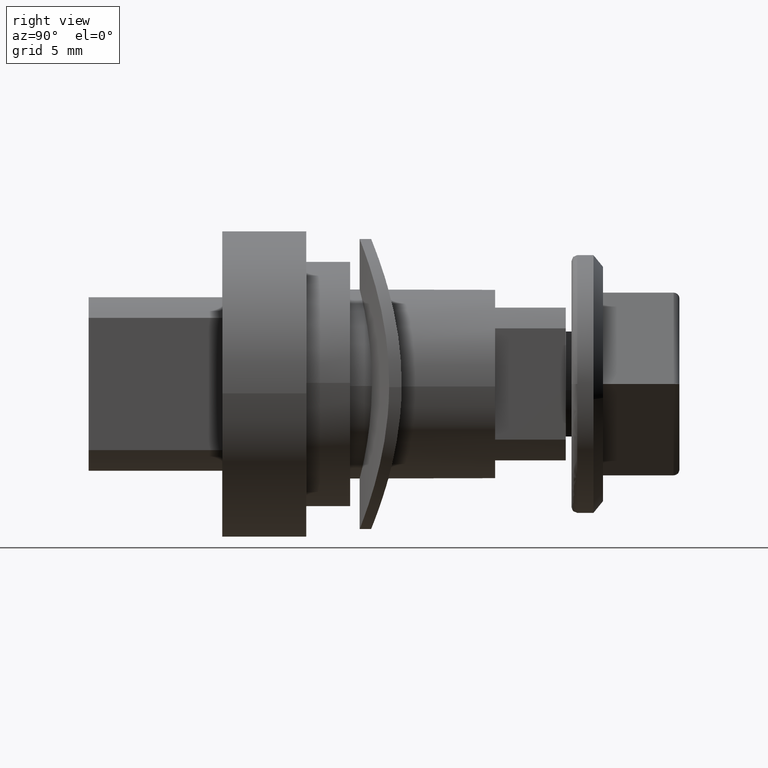
[diagram: clean part render]
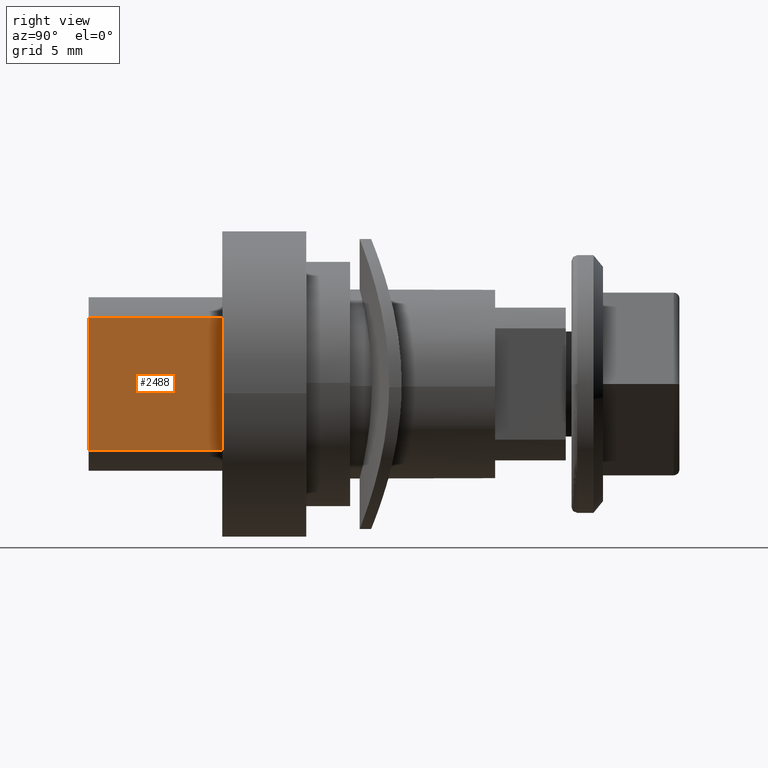
[diagram: same view with one face highlighted and labeled with its STEP entity id]
A machine part, right view. The second image highlights one B-rep face of the part: STEP entity #2488.
In plain terms, the highlighted face is a freeform B-spline surface patch.
Its self-contained STEP definition (entity closure, byte-faithful):
#2355=CARTESIAN_POINT('',(3.250000154366730,0.0,3.464101779673810));
#2356=VERTEX_POINT('',#2355);
#2370=CARTESIAN_POINT('',(3.250000154366620,0.0,-3.464101779673820));
#2371=VERTEX_POINT('',#2370);
#2372=CARTESIAN_POINT('',(3.250000154366620,0.0,-3.464101779673820));
#2373=CARTESIAN_POINT('',(3.250000154366730,0.0,3.464101779673810));
#2374=QUASI_UNIFORM_CURVE('',1,(#2372,#2373),.UNSPECIFIED.,.F.,.U.);
#2375=EDGE_CURVE('',#2371,#2356,#2374,.T.);
#2444=CARTESIAN_POINT('',(3.250000154366730,-7.000000332482050,3.464101779673810));
#2445=VERTEX_POINT('',#2444);
#2459=CARTESIAN_POINT('',(3.250000154366730,-7.000000332482050,3.464101779673810));
#2460=CARTESIAN_POINT('',(3.250000154366730,0.0,3.464101779673810));
#2461=QUASI_UNIFORM_CURVE('',1,(#2459,#2460),.UNSPECIFIED.,.F.,.U.);
#2462=EDGE_CURVE('',#2445,#2356,#2461,.T.);
#2467=CARTESIAN_POINT('',(3.250000154366620,-7.349650532655155,-3.810165599072051));
#2468=CARTESIAN_POINT('',(3.250000154366620,-7.349650532655155,3.810165722957973));
#2469=CARTESIAN_POINT('',(3.250000154366620,0.349650200173103,-3.810165599072051));
#2470=CARTESIAN_POINT('',(3.250000154366620,0.349650200173103,3.810165722957973));
#2471=B_SPLINE_SURFACE_WITH_KNOTS('',1,1,((#2467,#2469),(#2468,#2470)),.UNSPECIFIED.,.F.,.F.,.U.,(2,2),(2,2),(0.0,7.620331322030023),(0.0,7.699300732828259),.UNSPECIFIED.);
#2472=ORIENTED_EDGE('',*,*,#2375,.T.);
#2473=ORIENTED_EDGE('',*,*,#2462,.F.);
#2474=CARTESIAN_POINT('',(3.250000154366630,-7.000000332482050,-3.464101779673820));
#2475=VERTEX_POINT('',#2474);
#2476=CARTESIAN_POINT('',(3.250000154366630,-7.000000332482050,-3.464101779673820));
#2477=CARTESIAN_POINT('',(3.250000154366730,-7.000000332482050,3.464101779673810));
#2478=QUASI_UNIFORM_CURVE('',1,(#2476,#2477),.UNSPECIFIED.,.F.,.U.);
#2479=EDGE_CURVE('',#2475,#2445,#2478,.T.);
#2480=ORIENTED_EDGE('',*,*,#2479,.F.);
#2481=CARTESIAN_POINT('',(3.250000154366630,-7.000000332482050,-3.464101779673820));
#2482=CARTESIAN_POINT('',(3.250000154366620,0.0,-3.464101779673820));
#2483=QUASI_UNIFORM_CURVE('',1,(#2481,#2482),.UNSPECIFIED.,.F.,.U.);
#2484=EDGE_CURVE('',#2475,#2371,#2483,.T.);
#2485=ORIENTED_EDGE('',*,*,#2484,.T.);
#2486=EDGE_LOOP('',(#2472,#2473,#2480,#2485));
#2487=FACE_OUTER_BOUND('',#2486,.T.);
#2488=ADVANCED_FACE('',(#2487),#2471,.F.);